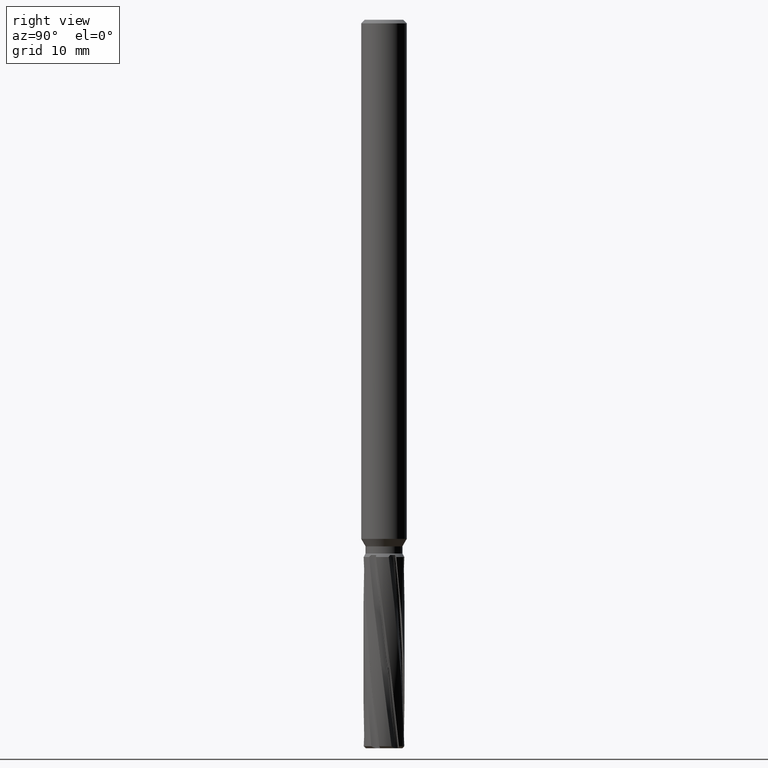
[diagram: clean part render]
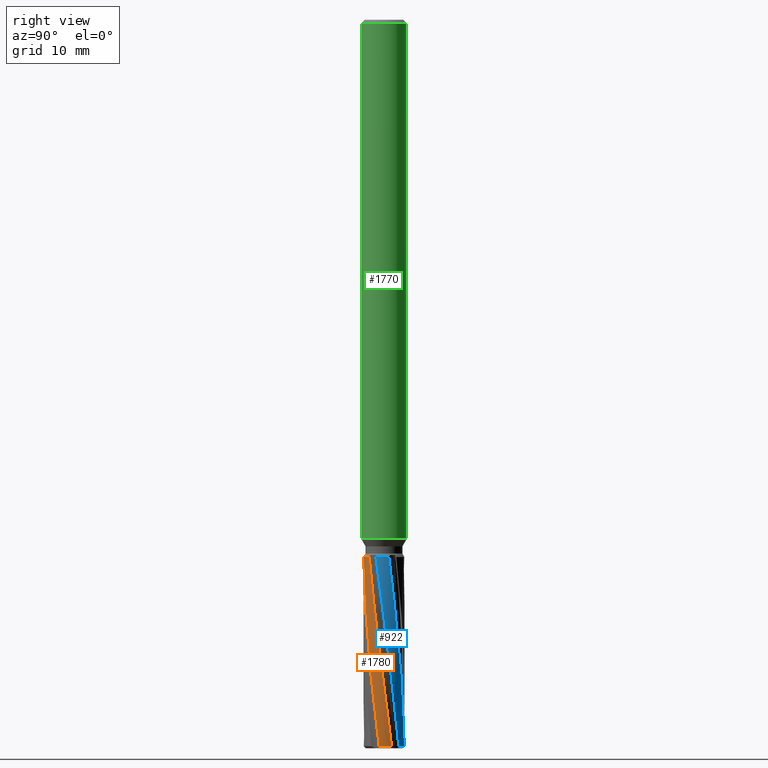
[diagram: same view with three faces highlighted in distinct colors, each labeled with its STEP entity id]
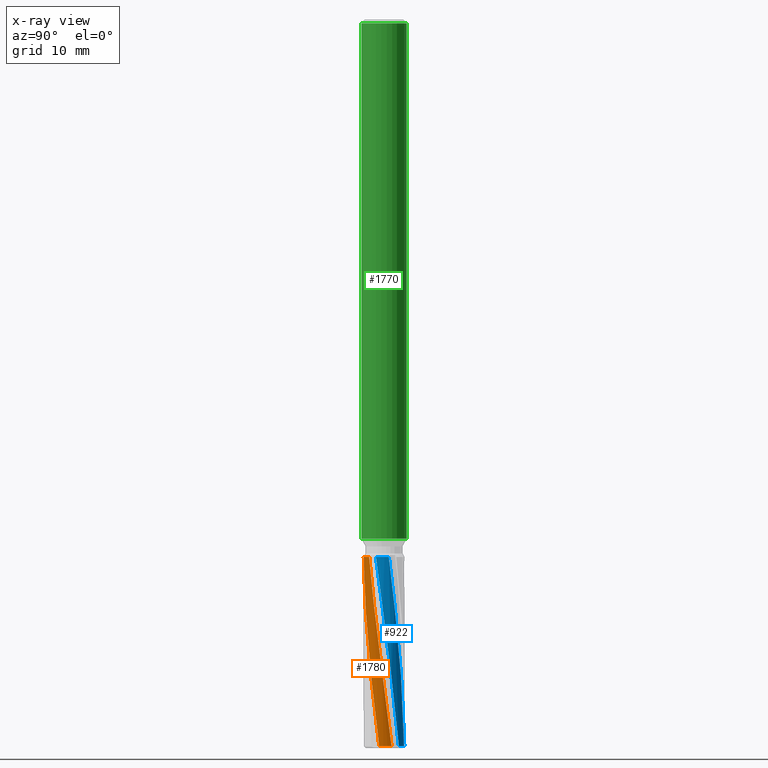
[diagram: x-ray of the same camera — body ghosted, the three highlighted faces saturated]
A machine part, right view with three faces highlighted in distinct colors.
The next image is the same camera in x-ray (body ghosted, the three faces saturated) — at least one of them is partly hidden behind the body in this view.
Their STEP definitions:

[orange] entity #1780 — the highlighted cylindrical surface (edge-blend (fillet) strip) has radius 2.25 mm, axis along (-0, -0, 1).
#790=VERTEX_POINT('',#2050);
#898=EDGE_CURVE('',#1530,#1150,#2167,.T.);
#976=EDGE_CURVE('',#1858,#790,#2254,.T.);
#1102=EDGE_CURVE('',#1530,#1858,#2394,.T.);
#1150=VERTEX_POINT('',#2446);
#1302=EDGE_CURVE('',#790,#1150,#2607,.T.);
#1530=VERTEX_POINT('',#2857);
#1780=ADVANCED_FACE('',(#3131),#3132,.T.);
#1858=VERTEX_POINT('',#3214);
#2050=CARTESIAN_POINT('',(0.265844101310908,-2.23423967241614,-59.0));
#2167=CIRCLE('',#4763,2.25);
#2254=CIRCLE('',#5426,2.25);
#2394=B_SPLINE_CURVE_WITH_KNOTS('',3,(#6484,#6485,#6486,#6487,#6488,#6489,#6490,#6491,#6492,#6493,#6494,#6495,#6496,#6497),.UNSPECIFIED.,.F.,.F.,(4,2,2,2,2,2,4),(0.0,2.61756637334791,11.8450242855266,16.4488720422681,19.3033301642657,21.3812781660239,23.2913006396628),.UNSPECIFIED.);
#2446=CARTESIAN_POINT('',(2.18649439195642,-0.530794003303674,-79.775));
#2607=B_SPLINE_CURVE_WITH_KNOTS('',3,(#7838,#7839,#7840,#7841,#7842,#7843,#7844,#7845,#7846,#7847,#7848,#7849,#7850,#7851,#7852,#7853,#7854,#7855),.UNSPECIFIED.,.F.,.F.,(4,2,2,2,2,2,2,2,4),(0.0,2.247631701004,3.8016994932323,7.09311981797219,9.53967169737734,10.4392825168459,13.5772190358115,15.1335946061095,16.6910953556379),.UNSPECIFIED.);
#2857=CARTESIAN_POINT('',(2.09267865002317,0.826556754093263,-79.775));
#3131=FACE_OUTER_BOUND('',#11075,.T.);
#3132=CYLINDRICAL_SURFACE('',#11076,2.25);
#3214=CARTESIAN_POINT('',(1.54733886732592,-1.63347556751319,-59.0));
#4763=AXIS2_PLACEMENT_3D('',#12213,#12214,#12215);
#5426=AXIS2_PLACEMENT_3D('',#12319,#12320,#12321);
#6484=CARTESIAN_POINT('',(2.09267865002317,0.826556754093264,-79.775));
#6485=CARTESIAN_POINT('',(2.13369850141375,0.722702582184213,-78.9096523586312));
#6486=CARTESIAN_POINT('',(2.16695001439544,0.615891804023777,-78.0431285386519));
#6487=CARTESIAN_POINT('',(2.28092785038611,0.123066497419004,-74.1282875098159));
#6488=CARTESIAN_POINT('',(2.26710631452001,-0.276879847242146,-71.1689947013188));
#6489=CARTESIAN_POINT('',(2.09659267722248,-0.839712960386933,-66.609361833801));
#6490=CARTESIAN_POINT('',(2.01543085275503,-1.01968227897775,-65.0684372529913));
#6491=CARTESIAN_POINT('',(1.84606734191739,-1.29213381417316,-62.6359244194659));
#6492=CARTESIAN_POINT('',(1.78652081041228,-1.36994520084184,-61.934514796982));
#6493=CARTESIAN_POINT('',(1.70216021421376,-1.47250828192133,-60.9550597951904));
#6494=CARTESIAN_POINT('',(1.66713370557999,-1.51180202512147,-60.5478973015418));
#6495=CARTESIAN_POINT('',(1.60274786850039,-1.57978171719035,-59.7569258037222));
#6496=CARTESIAN_POINT('',(1.57361457878795,-1.60858543115582,-59.3793478201836));
#6497=CARTESIAN_POINT('',(1.54733886732592,-1.63347556751319,-59.0));
#7838=CARTESIAN_POINT('',(0.265844101310896,-2.23423967241614,-59.0));
#7839=CARTESIAN_POINT('',(0.39784058465652,-2.21853388806165,-59.7373240335352));
#7840=CARTESIAN_POINT('',(0.51217714535847,-2.19311286633516,-60.4781928221111));
#7841=CARTESIAN_POINT('',(0.671516388130545,-2.14852056043182,-61.7520498154121));
#7842=CARTESIAN_POINT('',(0.722519924181557,-2.13245081705725,-62.2296805969117));
#7843=CARTESIAN_POINT('',(0.964264765745306,-2.0404807488437,-64.3341071178351));
#7844=CARTESIAN_POINT('',(1.12435495125646,-1.9577424195787,-65.7080420134101));
#7845=CARTESIAN_POINT('',(1.39067103336607,-1.77413550054303,-68.1730306065816));
#7846=CARTESIAN_POINT('',(1.49603862947886,-1.68619065407421,-69.2172494110187));
#7847=CARTESIAN_POINT('',(1.62871896195276,-1.55316643496694,-70.6774909086342));
#7848=CARTESIAN_POINT('',(1.66342558493277,-1.51596865637228,-71.0727820465935));
#7849=CARTESIAN_POINT('',(1.81498280976666,-1.34183702814065,-72.8605661580998));
#7850=CARTESIAN_POINT('',(1.91610842128803,-1.19296388782782,-74.2336125754862));
#7851=CARTESIAN_POINT('',(2.03931745315849,-0.954771944569141,-76.3123076248286));
#7852=CARTESIAN_POINT('',(2.07564571279674,-0.873067205234417,-77.0069988953338));
#7853=CARTESIAN_POINT('',(2.13860192750288,-0.704943197279761,-78.3916751552139));
#7854=CARTESIAN_POINT('',(2.16514796444444,-0.618726127164812,-79.0825667769898));
#7855=CARTESIAN_POINT('',(2.18649439195642,-0.53079400330367,-79.775));
#11075=EDGE_LOOP('',(#13130,#13131,#13132,#13133));
#11076=AXIS2_PLACEMENT_3D('',#13134,#13135,#13136);
#12213=CARTESIAN_POINT('',(0.0,0.0,-79.775));
#12214=DIRECTION('',(0.0,0.0,-1.0));
#12215=DIRECTION('',(0.0,1.0,0.0));
#12319=CARTESIAN_POINT('',(0.0,0.0,-59.0));
#12320=DIRECTION('',(0.0,0.0,-1.0));
#12321=DIRECTION('',(0.0,1.0,0.0));
#13130=ORIENTED_EDGE('',*,*,#1302,.T.);
#13131=ORIENTED_EDGE('',*,*,#898,.F.);
#13132=ORIENTED_EDGE('',*,*,#1102,.T.);
#13133=ORIENTED_EDGE('',*,*,#976,.T.);
#13134=CARTESIAN_POINT('',(0.0,0.0,-69.3875));
#13135=DIRECTION('',(-0.0,-0.0,1.0));
#13136=DIRECTION('',(0.0,1.0,0.0));

[blue] entity #922 — the highlighted cylindrical surface (edge-blend (fillet) strip) has radius 2.25 mm, axis along (-0, -0, 1).
#696=VERTEX_POINT('',#1950);
#698=VERTEX_POINT('',#1952);
#922=ADVANCED_FACE('',(#2194),#2195,.T.);
#1002=EDGE_CURVE('',#1838,#696,#2281,.T.);
#1056=EDGE_CURVE('',#1446,#698,#2340,.T.);
#1446=VERTEX_POINT('',#2766);
#1640=EDGE_CURVE('',#698,#696,#2980,.T.);
#1814=EDGE_CURVE('',#1838,#1446,#3169,.T.);
#1838=VERTEX_POINT('',#3194);
#1950=CARTESIAN_POINT('',(1.55292828701563,1.62816268701463,-79.775));
#1952=CARTESIAN_POINT('',(2.06783036511085,-0.886892091026587,-59.0));
#2194=FACE_OUTER_BOUND('',#5053,.T.);
#2195=CYLINDRICAL_SURFACE('',#5054,2.25);
#2281=CIRCLE('',#5588,2.25);
#2340=CIRCLE('',#5987,2.25);
#2766=CARTESIAN_POINT('',(2.18830077159059,0.523296983610692,-59.0));
#2980=B_SPLINE_CURVE_WITH_KNOTS('',3,(#9964,#9965,#9966,#9967,#9968,#9969,#9970,#9971,#9972,#9973,#9974,#9975,#9976,#9977,#9978,#9979,#9980,#9981),.UNSPECIFIED.,.F.,.F.,(4,2,2,2,2,2,2,2,4),(0.0,2.24763168290218,3.80169943507472,7.09312008103618,9.53967220730638,10.439283120069,13.5772199744188,15.1335957113283,16.6910966277171),.UNSPECIFIED.);
#3169=B_SPLINE_CURVE_WITH_KNOTS('',3,(#11337,#11338,#11339,#11340,#11341,#11342,#11343,#11344,#11345,#11346,#11347,#11348,#11349,#11350),.UNSPECIFIED.,.F.,.F.,(4,2,2,2,2,2,4),(0.0,2.61756637323227,11.845024322233,15.9225985976449,19.5853204991764,21.6943934148403,23.6433837926764),.UNSPECIFIED.);
#3194=CARTESIAN_POINT('',(0.330520178297209,2.22559124992402,-79.775));
#5053=EDGE_LOOP('',(#12243,#12244,#12245,#12246));
#5054=AXIS2_PLACEMENT_3D('',#12247,#12248,#12249);
#5588=AXIS2_PLACEMENT_3D('',#12332,#12333,#12334);
#5987=AXIS2_PLACEMENT_3D('',#12394,#12395,#12396);
#9964=CARTESIAN_POINT('',(2.06783036511085,-0.886892091026586,-59.0));
#9965=CARTESIAN_POINT('',(2.12022699812433,-0.764726892045709,-59.737324027597));
#9966=CARTESIAN_POINT('',(2.1553800272427,-0.652998017340347,-60.478192800468));
#9967=CARTESIAN_POINT('',(2.19643157845033,-0.492710035459535,-61.7520497612532));
#9968=CARTESIAN_POINT('',(2.20801653899464,-0.44050481272118,-62.2296804831758));
#9969=CARTESIAN_POINT('',(2.24924054583774,-0.185162611488708,-64.3341069607304));
#9970=CARTESIAN_POINT('',(2.25763214514674,-0.00515127907390373,-65.7080418606916));
#9971=CARTESIAN_POINT('',(2.23178193232976,0.317288676662529,-68.1730304824044));
#9972=CARTESIAN_POINT('',(2.20830325989926,0.452512116465404,-69.2172492954999));
#9973=CARTESIAN_POINT('',(2.15944107352724,0.633928767111096,-70.6774908104463));
#9974=CARTESIAN_POINT('',(2.14458016390387,0.682584474143632,-71.0727819527786));
#9975=CARTESIAN_POINT('',(2.06955636305666,0.900902697663927,-72.860566082745));
#9976=CARTESIAN_POINT('',(1.99119124713632,1.06291661847609,-74.2336125149936));
#9977=CARTESIAN_POINT('',(1.84651548820706,1.28871474457409,-76.312307587118));
#9978=CARTESIAN_POINT('',(1.79392123773043,1.3610283108368,-77.0069988651834));
#9979=CARTESIAN_POINT('',(1.67979968216445,1.49961199771277,-78.3916751400874));
#9980=CARTESIAN_POINT('',(1.61840652705383,1.56571007589027,-79.0825667693576));
#9981=CARTESIAN_POINT('',(1.55292828701563,1.62816268701463,-79.775));
#11337=CARTESIAN_POINT('',(0.33052017829721,2.22559124992402,-79.775));
#11338=CARTESIAN_POINT('',(0.440970455149854,2.20918839733393,-78.9096523586695));
#11339=CARTESIAN_POINT('',(0.550097058926398,2.18457966321062,-78.043128538685));
#11340=CARTESIAN_POINT('',(1.03388521360608,2.03687471087547,-74.1282874974137));
#11341=CARTESIAN_POINT('',(1.37333814124056,1.82493173620791,-71.168994679523));
#11342=CARTESIAN_POINT('',(1.76020671556421,1.41217250867256,-66.7828532968175));
#11343=CARTESIAN_POINT('',(1.86391059219952,1.27225516197401,-65.4250205028297));
#11344=CARTESIAN_POINT('',(2.02857817138756,0.985807020279164,-62.8968354433286));
#11345=CARTESIAN_POINT('',(2.07690601132513,0.870505606003254,-62.0021711726735));
#11346=CARTESIAN_POINT('',(2.12836792419946,0.731760862289189,-60.9055724400064));
#11347=CARTESIAN_POINT('',(2.14422748374106,0.68338642125057,-60.5096575676314));
#11348=CARTESIAN_POINT('',(2.16998785325712,0.596284968058733,-59.7393286929596));
#11349=CARTESIAN_POINT('',(2.1800798012367,0.557675083106895,-59.3704849770985));
#11350=CARTESIAN_POINT('',(2.18830077159059,0.523296983610692,-59.0));
#12243=ORIENTED_EDGE('',*,*,#1814,.T.);
#12244=ORIENTED_EDGE('',*,*,#1056,.T.);
#12245=ORIENTED_EDGE('',*,*,#1640,.T.);
#12246=ORIENTED_EDGE('',*,*,#1002,.F.);
#12247=CARTESIAN_POINT('',(0.0,0.0,-69.3875));
#12248=DIRECTION('',(-0.0,-0.0,1.0));
#12249=DIRECTION('',(0.0,1.0,0.0));
#12332=CARTESIAN_POINT('',(0.0,0.0,-79.775));
#12333=DIRECTION('',(0.0,0.0,-1.0));
#12334=DIRECTION('',(0.0,1.0,0.0));
#12394=CARTESIAN_POINT('',(0.0,0.0,-59.0));
#12395=DIRECTION('',(0.0,0.0,-1.0));
#12396=DIRECTION('',(0.0,1.0,0.0));

[green] entity #1770 — the highlighted cylindrical surface (edge-blend (fillet) strip) has radius 2.5 mm, axis along (-0, -0, 1).
#690=VERTEX_POINT('',#1943);
#866=EDGE_CURVE('',#1750,#690,#2131,.T.);
#954=EDGE_CURVE('',#1338,#1298,#2230,.T.);
#1010=EDGE_CURVE('',#1338,#690,#2291,.T.);
#1250=EDGE_CURVE('',#1298,#1750,#2552,.T.);
#1298=VERTEX_POINT('',#2603);
#1338=VERTEX_POINT('',#2652);
#1750=VERTEX_POINT('',#3098);
#1770=ADVANCED_FACE('',(#3119),#3120,.T.);
#1943=CARTESIAN_POINT('',(3.06151588455594E-016,-2.5,-0.399999999999999));
#2131=LINE('',#4585,#4586);
#2230=LINE('',#5127,#5128);
#2291=CIRCLE('',#5599,2.5);
#2552=CIRCLE('',#7678,2.5);
#2603=CARTESIAN_POINT('',(0.0,2.5,-57.0));
#2652=CARTESIAN_POINT('',(0.0,2.5,-0.399999999999999));
#3098=CARTESIAN_POINT('',(3.06151588455594E-016,-2.5,-57.0));
#3119=FACE_OUTER_BOUND('',#10896,.T.);
#3120=CYLINDRICAL_SURFACE('',#10897,2.5);
#4585=CARTESIAN_POINT('',(3.06151588455594E-016,-2.5,-28.7));
#4586=VECTOR('',#12159,1.0);
#5127=CARTESIAN_POINT('',(-3.06151588455594E-016,2.5,-28.7));
#5128=VECTOR('',#12299,1.0);
#5599=AXIS2_PLACEMENT_3D('',#12352,#12353,#12354);
#7678=AXIS2_PLACEMENT_3D('',#12584,#12585,#12586);
#10896=EDGE_LOOP('',(#13113,#13114,#13115,#13116));
#10897=AXIS2_PLACEMENT_3D('',#13117,#13118,#13119);
#12159=DIRECTION('',(-0.0,-0.0,1.0));
#12299=DIRECTION('',(0.0,0.0,-1.0));
#12352=CARTESIAN_POINT('',(0.0,0.0,-0.399999999999999));
#12353=DIRECTION('',(0.0,0.0,-1.0));
#12354=DIRECTION('',(0.0,1.0,0.0));
#12584=CARTESIAN_POINT('',(0.0,0.0,-57.0));
#12585=DIRECTION('',(0.0,0.0,-1.0));
#12586=DIRECTION('',(0.0,1.0,0.0));
#13113=ORIENTED_EDGE('',*,*,#954,.F.);
#13114=ORIENTED_EDGE('',*,*,#1010,.T.);
#13115=ORIENTED_EDGE('',*,*,#866,.F.);
#13116=ORIENTED_EDGE('',*,*,#1250,.F.);
#13117=CARTESIAN_POINT('',(0.0,0.0,-28.7));
#13118=DIRECTION('',(-0.0,-0.0,1.0));
#13119=DIRECTION('',(0.0,1.0,0.0));